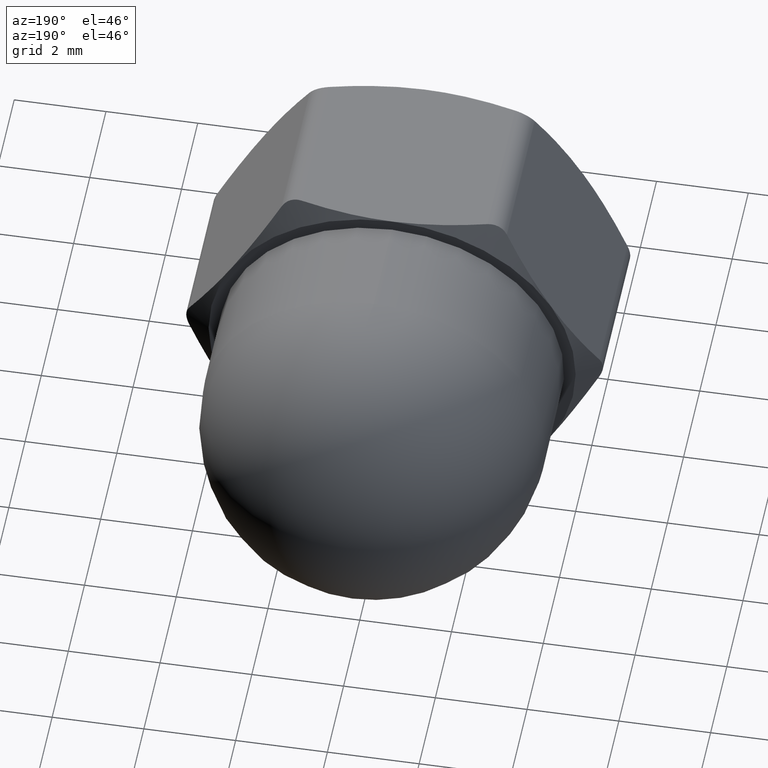
[diagram: clean part render]
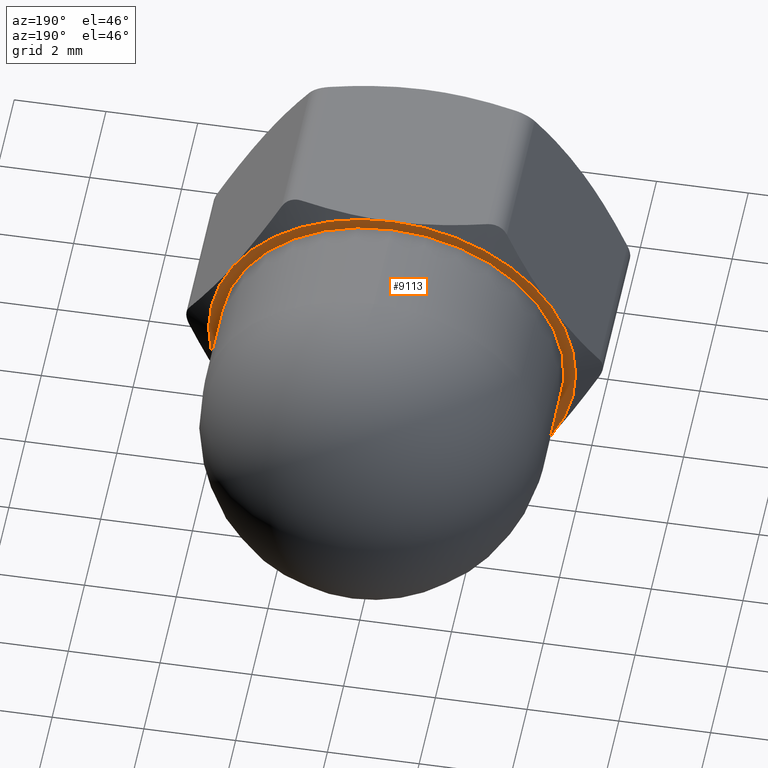
[diagram: same view with one face highlighted and labeled with its STEP entity id]
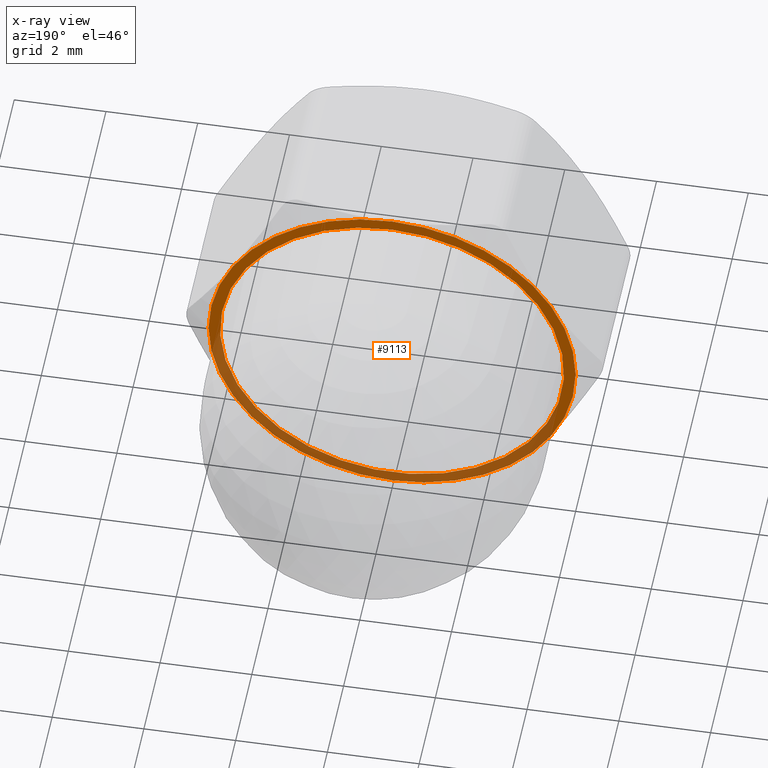
[diagram: x-ray of the same camera — body ghosted, the highlighted face saturated]
A machine part, auxiliary view. The second image highlights one B-rep face of the part: STEP entity #9113.
The next image is the same camera in x-ray: the body ghosted, the highlighted face saturated — about 42% of this face is hidden behind the body in this view.
In plain terms, the highlighted planar face has unit normal (0, 1, 0).
Its self-contained STEP definition (entity closure, byte-faithful):
#12 = AXIS2_PLACEMENT_3D ( 'NONE', #555, #1794, #12966 ) ;
#108 = CIRCLE ( 'NONE', #12, 4.000000000000000000 ) ;
#247 = CARTESIAN_POINT ( 'NONE',  ( -3.464101615137754400, 4.000000000000000000, 2.000000000000000000 ) ) ;
#344 = DIRECTION ( 'NONE',  ( 0.0000000000000000000, 0.0000000000000000000, 1.000000000000000000 ) ) ;
#555 = CARTESIAN_POINT ( 'NONE',  ( 0.0000000000000000000, 4.000000000000000000, 0.0000000000000000000 ) ) ;
#785 = ORIENTED_EDGE ( 'NONE', *, *, #12559, .T. ) ;
#1141 = ORIENTED_EDGE ( 'NONE', *, *, #7546, .T. ) ;
#1346 = VERTEX_POINT ( 'NONE', #4089 ) ;
#1399 = CIRCLE ( 'NONE', #8362, 4.000000000000000000 ) ;
#1549 = CARTESIAN_POINT ( 'NONE',  ( 0.0000000000000000000, 4.000000000000000000, 0.0000000000000000000 ) ) ;
#1794 = DIRECTION ( 'NONE',  ( 0.0000000000000000000, 1.000000000000000000, 0.0000000000000000000 ) ) ;
#2011 = FACE_OUTER_BOUND ( 'NONE', #12066, .T. ) ;
#2248 = DIRECTION ( 'NONE',  ( 0.0000000000000000000, 0.0000000000000000000, 1.000000000000000000 ) ) ;
#3026 = DIRECTION ( 'NONE',  ( 0.0000000000000000000, 0.0000000000000000000, 1.000000000000000000 ) ) ;
#3239 = EDGE_CURVE ( 'NONE', #1346, #12475, #8062, .T. ) ;
#3283 = ORIENTED_EDGE ( 'NONE', *, *, #12594, .T. ) ;
#3438 = DIRECTION ( 'NONE',  ( 0.0000000000000000000, 1.000000000000000000, 0.0000000000000000000 ) ) ;
#3618 = EDGE_LOOP ( 'NONE', ( #15840 ) ) ;
#3806 = CARTESIAN_POINT ( 'NONE',  ( 3.464101615137755300, 4.000000000000000000, 2.000000000000000000 ) ) ;
#4089 = CARTESIAN_POINT ( 'NONE',  ( -3.464101615137754800, 4.000000000000000000, -2.000000000000000000 ) ) ;
#4270 = DIRECTION ( 'NONE',  ( 0.0000000000000000000, 1.000000000000000000, 0.0000000000000000000 ) ) ;
#4660 = AXIS2_PLACEMENT_3D ( 'NONE', #15100, #4270, #7898 ) ;
#5088 = AXIS2_PLACEMENT_3D ( 'NONE', #7701, #10170, #344 ) ;
#5238 = VERTEX_POINT ( 'NONE', #10305 ) ;
#5807 = CARTESIAN_POINT ( 'NONE',  ( 0.0000000000000000000, 4.000000000000000000, 0.0000000000000000000 ) ) ;
#5966 = CARTESIAN_POINT ( 'NONE',  ( 0.0000000000000000000, 4.000000000000000000, 0.0000000000000000000 ) ) ;
#6080 = AXIS2_PLACEMENT_3D ( 'NONE', #1549, #10139, #12729 ) ;
#6286 = ORIENTED_EDGE ( 'NONE', *, *, #3239, .T. ) ;
#6977 = CIRCLE ( 'NONE', #4660, 3.750000000000000000 ) ;
#7257 = ORIENTED_EDGE ( 'NONE', *, *, #12537, .F. ) ;
#7546 = EDGE_CURVE ( 'NONE', #5238, #1346, #108, .T. ) ;
#7701 = CARTESIAN_POINT ( 'NONE',  ( 0.0000000000000000000, 4.000000000000000000, 0.0000000000000000000 ) ) ;
#7898 = DIRECTION ( 'NONE',  ( 0.0000000000000000000, 0.0000000000000000000, 1.000000000000000000 ) ) ;
#8062 = CIRCLE ( 'NONE', #12613, 4.000000000000000000 ) ;
#8143 = CARTESIAN_POINT ( 'NONE',  ( 3.464101615137753900, 4.000000000000000000, -2.000000000000002200 ) ) ;
#8190 = VERTEX_POINT ( 'NONE', #8658 ) ;
#8362 = AXIS2_PLACEMENT_3D ( 'NONE', #10326, #12546, #12496 ) ;
#8535 = CARTESIAN_POINT ( 'NONE',  ( 1.347111479062088600E-015, 4.000000000000000000, 3.750000000000000000 ) ) ;
#8658 = CARTESIAN_POINT ( 'NONE',  ( 0.0000000000000000000, 4.000000000000000000, 4.000000000000000000 ) ) ;
#8672 = VERTEX_POINT ( 'NONE', #3806 ) ;
#8704 = CIRCLE ( 'NONE', #5088, 4.000000000000000000 ) ;
#9113 = ADVANCED_FACE ( 'NONE', ( #11788, #2011 ), #12518, .T. ) ;
#9314 = EDGE_CURVE ( 'NONE', #8190, #8672, #11970, .T. ) ;
#10139 = DIRECTION ( 'NONE',  ( 0.0000000000000000000, 1.000000000000000000, 0.0000000000000000000 ) ) ;
#10170 = DIRECTION ( 'NONE',  ( 0.0000000000000000000, 1.000000000000000000, 0.0000000000000000000 ) ) ;
#10305 = CARTESIAN_POINT ( 'NONE',  ( -7.511572993685799100E-016, 4.000000000000000000, -4.000000000000000000 ) ) ;
#10326 = CARTESIAN_POINT ( 'NONE',  ( 0.0000000000000000000, 4.000000000000000000, 0.0000000000000000000 ) ) ;
#11788 = FACE_BOUND ( 'NONE', #3618, .T. ) ;
#11830 = AXIS2_PLACEMENT_3D ( 'NONE', #12869, #15224, #3026 ) ;
#11839 = EDGE_CURVE ( 'NONE', #15586, #15586, #6977, .T. ) ;
#11970 = CIRCLE ( 'NONE', #13223, 4.000000000000000000 ) ;
#12066 = EDGE_LOOP ( 'NONE', ( #3283, #13416, #785, #7257, #1141, #6286 ) ) ;
#12475 = VERTEX_POINT ( 'NONE', #247 ) ;
#12496 = DIRECTION ( 'NONE',  ( 0.0000000000000000000, 0.0000000000000000000, -1.000000000000000000 ) ) ;
#12518 = PLANE ( 'NONE',  #6080 ) ;
#12537 = EDGE_CURVE ( 'NONE', #5238, #14356, #1399, .T. ) ;
#12546 = DIRECTION ( 'NONE',  ( -0.0000000000000000000, -1.000000000000000000, -0.0000000000000000000 ) ) ;
#12559 = EDGE_CURVE ( 'NONE', #8672, #14356, #8704, .T. ) ;
#12594 = EDGE_CURVE ( 'NONE', #12475, #8190, #13634, .T. ) ;
#12613 = AXIS2_PLACEMENT_3D ( 'NONE', #5966, #3438, #2248 ) ;
#12729 = DIRECTION ( 'NONE',  ( 0.0000000000000000000, -0.0000000000000000000, 1.000000000000000000 ) ) ;
#12869 = CARTESIAN_POINT ( 'NONE',  ( 0.0000000000000000000, 4.000000000000000000, 0.0000000000000000000 ) ) ;
#12966 = DIRECTION ( 'NONE',  ( 0.0000000000000000000, 0.0000000000000000000, 1.000000000000000000 ) ) ;
#13047 = DIRECTION ( 'NONE',  ( 0.0000000000000000000, 1.000000000000000000, 0.0000000000000000000 ) ) ;
#13145 = DIRECTION ( 'NONE',  ( 0.0000000000000000000, 0.0000000000000000000, 1.000000000000000000 ) ) ;
#13223 = AXIS2_PLACEMENT_3D ( 'NONE', #5807, #13047, #13145 ) ;
#13416 = ORIENTED_EDGE ( 'NONE', *, *, #9314, .T. ) ;
#13634 = CIRCLE ( 'NONE', #11830, 4.000000000000000000 ) ;
#14356 = VERTEX_POINT ( 'NONE', #8143 ) ;
#15100 = CARTESIAN_POINT ( 'NONE',  ( 1.347111479062088600E-015, 4.000000000000000000, 0.0000000000000000000 ) ) ;
#15224 = DIRECTION ( 'NONE',  ( 0.0000000000000000000, 1.000000000000000000, 0.0000000000000000000 ) ) ;
#15586 = VERTEX_POINT ( 'NONE', #8535 ) ;
#15840 = ORIENTED_EDGE ( 'NONE', *, *, #11839, .F. ) ;